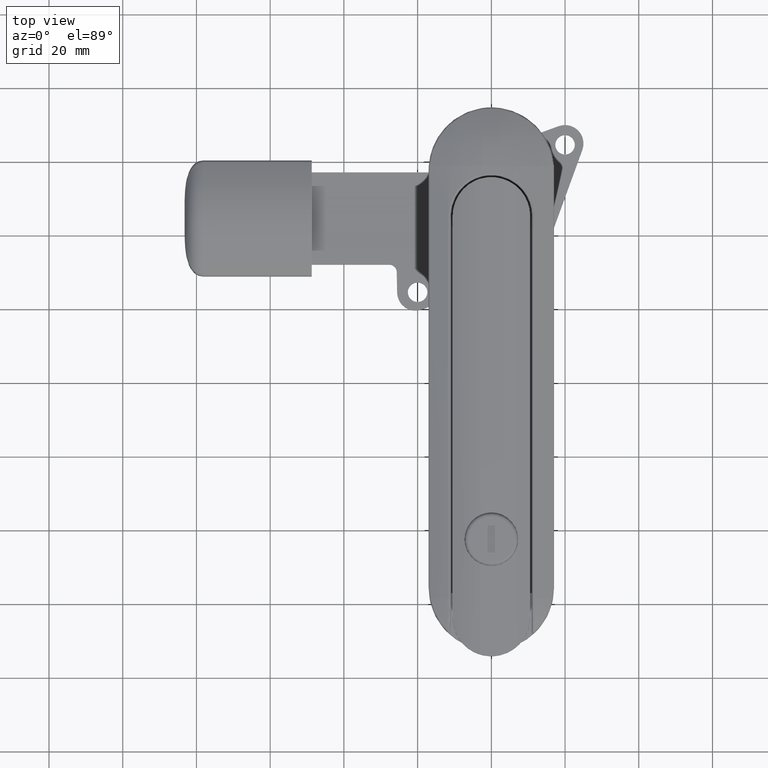
[diagram: clean part render]
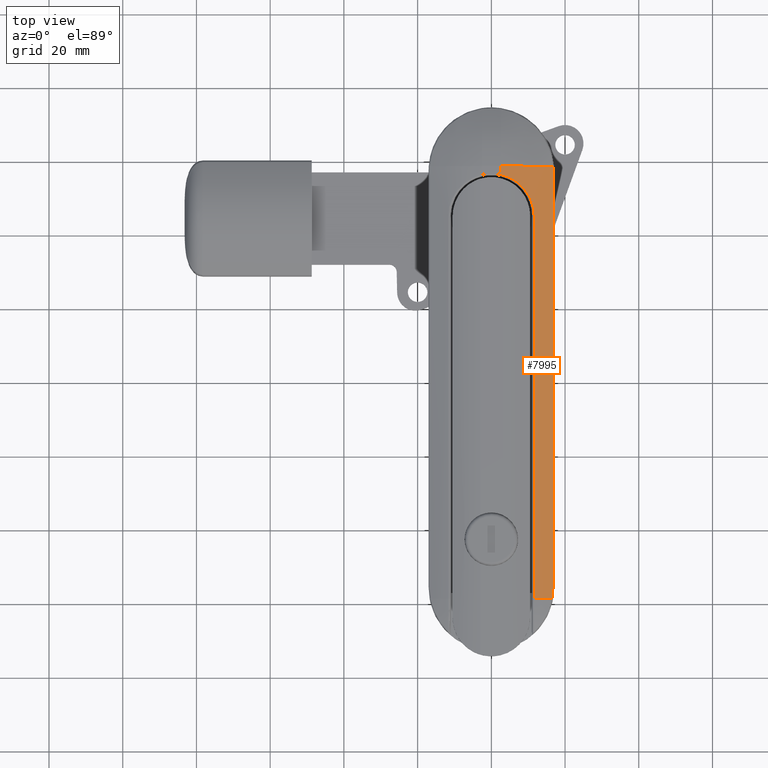
[diagram: same view with one face highlighted and labeled with its STEP entity id]
A machine part, top view. The second image highlights one B-rep face of the part: STEP entity #7995.
In plain terms, the highlighted cylindrical surface (partial cylindrical patch) has radius 31.7857 mm, axis along (0, -1, -0).
Its self-contained STEP definition (entity closure, byte-faithful):
#288=CYLINDRICAL_SURFACE('',#8534,31.7857142857143);
#454=B_SPLINE_CURVE_WITH_KNOTS('',3,(#12090,#12091,#12092,#12093),
 .UNSPECIFIED.,.F.,.F.,(4,4),(0.,0.100076612241041),.UNSPECIFIED.);
#456=B_SPLINE_CURVE_WITH_KNOTS('',3,(#12127,#12128,#12129,#12130),
 .UNSPECIFIED.,.F.,.F.,(4,4),(0.,0.3020833541256),.UNSPECIFIED.);
#469=B_SPLINE_CURVE_WITH_KNOTS('',3,(#12337,#12338,#12339,#12340,#12341,
#12342),.UNSPECIFIED.,.F.,.F.,(4,1,1,4),(-1.56123514201352,-1.11516795858109,
-0.669100775148653,-4.33084535832009E-16),.UNSPECIFIED.);
#722=CIRCLE('',#8535,31.7857142857143);
#723=CIRCLE('',#8536,31.7857142857143);
#1108=FACE_OUTER_BOUND('',#1603,.T.);
#1603=EDGE_LOOP('',(#5548,#5549,#5550,#5551,#5552,#5553,#5554,#5555));
#2165=LINE('',#12099,#2775);
#2174=LINE('',#12344,#2784);
#2177=LINE('',#12376,#2787);
#2775=VECTOR('',#9470,113.3);
#2784=VECTOR('',#9527,103.8);
#2787=VECTOR('',#9540,2.27502783967818);
#3404=VERTEX_POINT('',#12048);
#3406=VERTEX_POINT('',#12083);
#3408=VERTEX_POINT('',#12095);
#3410=VERTEX_POINT('',#12120);
#3425=VERTEX_POINT('',#12228);
#3431=VERTEX_POINT('',#12296);
#3432=VERTEX_POINT('',#12335);
#3435=VERTEX_POINT('',#12374);
#4211=EDGE_CURVE('',#3404,#3406,#454,.T.);
#4214=EDGE_CURVE('',#3406,#3408,#2165,.T.);
#4217=EDGE_CURVE('',#3408,#3410,#456,.T.);
#4252=EDGE_CURVE('',#3432,#3431,#469,.T.);
#4253=EDGE_CURVE('',#3425,#3432,#2174,.T.);
#4259=EDGE_CURVE('',#3404,#3435,#722,.T.);
#4260=EDGE_CURVE('',#3435,#3431,#2177,.T.);
#4261=EDGE_CURVE('',#3410,#3425,#723,.T.);
#5548=ORIENTED_EDGE('',*,*,#4211,.F.);
#5549=ORIENTED_EDGE('',*,*,#4259,.T.);
#5550=ORIENTED_EDGE('',*,*,#4260,.T.);
#5551=ORIENTED_EDGE('',*,*,#4252,.F.);
#5552=ORIENTED_EDGE('',*,*,#4253,.F.);
#5553=ORIENTED_EDGE('',*,*,#4261,.F.);
#5554=ORIENTED_EDGE('',*,*,#4217,.F.);
#5555=ORIENTED_EDGE('',*,*,#4214,.F.);
#7995=ADVANCED_FACE('',(#1108),#288,.T.);
#8534=AXIS2_PLACEMENT_3D('',#12373,#9536,#9537);
#8535=AXIS2_PLACEMENT_3D('',#12375,#9538,#9539);
#8536=AXIS2_PLACEMENT_3D('',#12377,#9541,#9542);
#9470=DIRECTION('',(0.,-1.,-1.11022302462516E-16));
#9527=DIRECTION('',(0.,1.,1.11022302462516E-16));
#9536=DIRECTION('center_axis',(0.,-1.,-1.11022302462516E-16));
#9537=DIRECTION('ref_axis',(1.04785094459003E-16,-1.11022302462516E-16,
1.));
#9538=DIRECTION('center_axis',(0.,-1.,0.));
#9539=DIRECTION('ref_axis',(1.04785094459003E-16,6.98567296393356E-17,1.));
#9540=DIRECTION('',(0.,-1.,-1.13577803030707E-16));
#9541=DIRECTION('center_axis',(0.,-1.,0.));
#9542=DIRECTION('ref_axis',(1.04785094459003E-16,6.98567296393356E-17,1.));
#12048=CARTESIAN_POINT('',(16.6929286436992,57.65,3.1553196119471));
#12083=CARTESIAN_POINT('',(16.7237442922374,56.65,3.13992081646251));
#12090=CARTESIAN_POINT('Ctrl Pts',(16.6929286436992,57.65,3.1553196119471));
#12091=CARTESIAN_POINT('Ctrl Pts',(16.7134598638587,57.317176691883,3.14507391751347));
#12092=CARTESIAN_POINT('Ctrl Pts',(16.7237442922374,56.9835887074701,3.13992081646251));
#12093=CARTESIAN_POINT('Ctrl Pts',(16.7237442922374,56.65,3.13992081646251));
#12095=CARTESIAN_POINT('',(16.7237442922374,-56.65,3.13992081646249));
#12099=CARTESIAN_POINT('',(16.7237442922374,57.65,3.1399208164625));
#12120=CARTESIAN_POINT('',(16.4443297468417,-59.65,3.278026725652));
#12127=CARTESIAN_POINT('Ctrl Pts',(16.7237442922375,-56.65,3.13992081646247));
#12128=CARTESIAN_POINT('Ctrl Pts',(16.7237442922375,-57.656944513752,3.13992081646247));
#12129=CARTESIAN_POINT('Ctrl Pts',(16.6296080972486,-58.6637166306628,3.18757700437783));
#12130=CARTESIAN_POINT('Ctrl Pts',(16.4443297468417,-59.65,3.278026725652));
#12228=CARTESIAN_POINT('',(11.6438356164383,-59.65,5.1563931129632));
#12296=CARTESIAN_POINT('',(2.5,55.3749721603218,6.5));
#12335=CARTESIAN_POINT('',(11.6438356164383,44.15,5.15639311296321));
#12337=CARTESIAN_POINT('Ctrl Pts',(11.6438356164383,44.15,5.15639311296321));
#12338=CARTESIAN_POINT('Ctrl Pts',(11.6438356164383,45.6368906114415,5.15639311296321));
#12339=CARTESIAN_POINT('Ctrl Pts',(11.0444961977956,48.6053178301032,5.34294990199732));
#12340=CARTESIAN_POINT('Ctrl Pts',(8.12584780383847,52.9997646822707,6.08458408858838));
#12341=CARTESIAN_POINT('Ctrl Pts',(4.71178857799256,54.8901165261561,6.5));
#12342=CARTESIAN_POINT('Ctrl Pts',(2.5,55.3749721603218,6.5));
#12344=CARTESIAN_POINT('',(11.6438356164383,57.65,5.15639311296322));
#12373=CARTESIAN_POINT('Origin',(2.5,57.65,-25.2857142857143));
#12374=CARTESIAN_POINT('',(2.5,57.65,6.5));
#12375=CARTESIAN_POINT('Origin',(2.5,57.65,-25.2857142857143));
#12376=CARTESIAN_POINT('',(2.5,57.65,6.5));
#12377=CARTESIAN_POINT('Origin',(2.5,-59.65,-25.2857142857144));